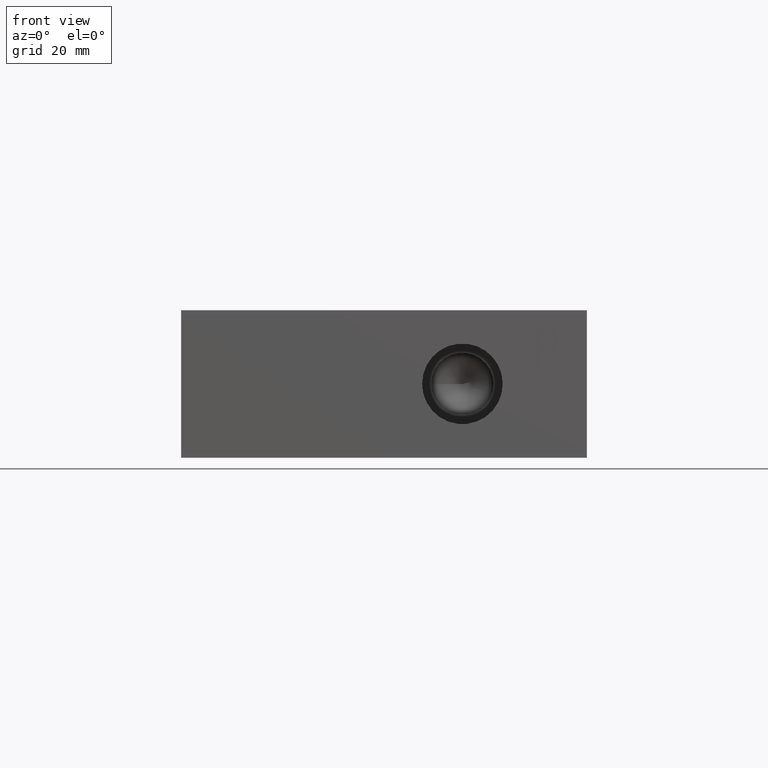
[diagram: clean part render]
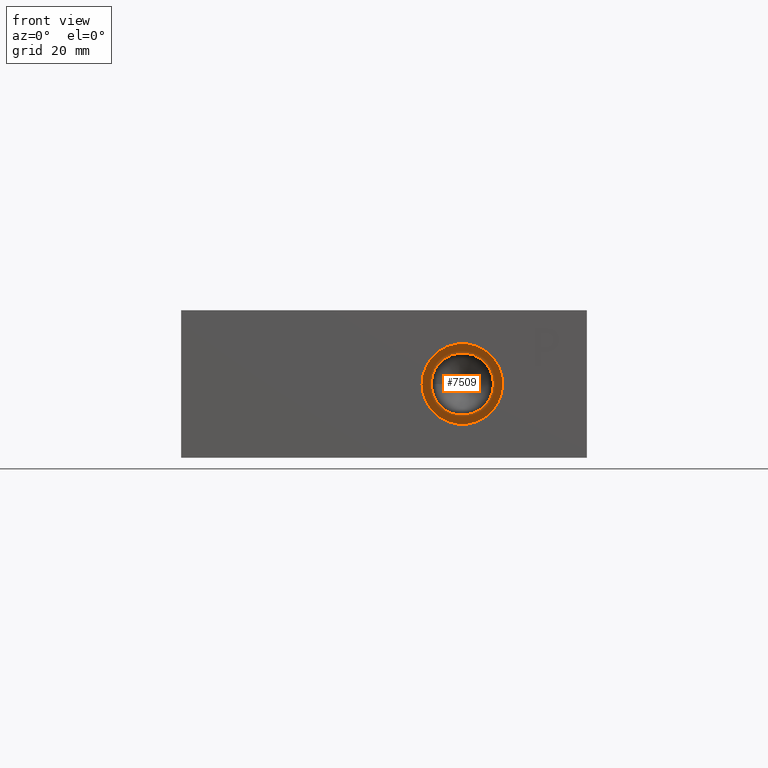
[diagram: same view with one face highlighted and labeled with its STEP entity id]
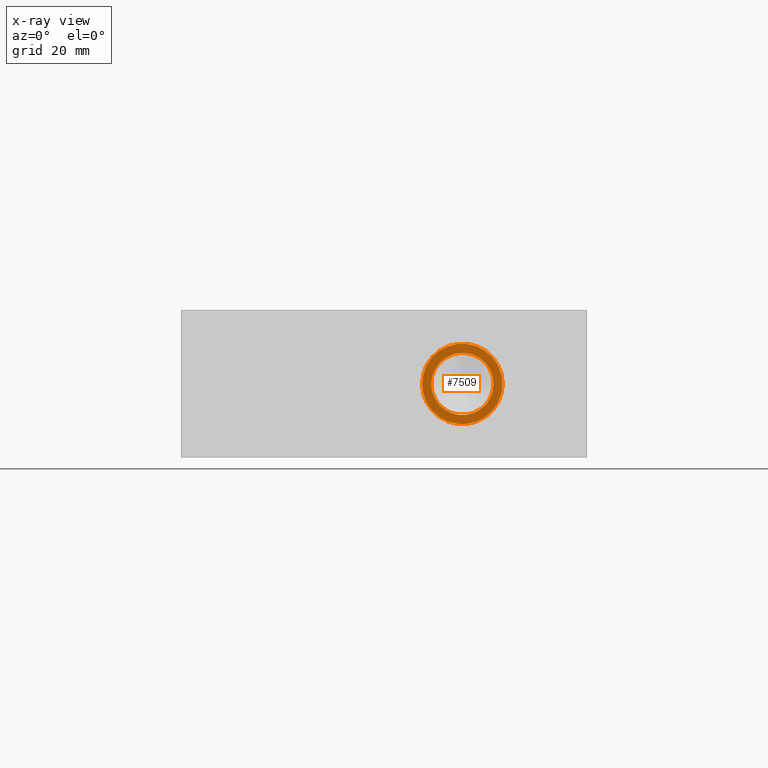
[diagram: x-ray of the same camera — body ghosted, the highlighted face saturated]
A machine part, front view. The second image highlights one B-rep face of the part: STEP entity #7509.
The next image is the same camera in x-ray: the body ghosted, the highlighted face saturated — about 0% of this face is hidden behind the body in this view.
In plain terms, the highlighted planar face has unit normal (0, -1, 0).
Its self-contained STEP definition (entity closure, byte-faithful):
#53=CIRCLE('',#7831,6.9342);
#54=CIRCLE('',#7832,6.9342);
#55=CIRCLE('',#7833,5.3594);
#156=FACE_BOUND('',#1188,.T.);
#438=PLANE('',#7830);
#780=FACE_OUTER_BOUND('',#1187,.T.);
#1187=EDGE_LOOP('',(#6508,#6509));
#1188=EDGE_LOOP('',(#6510));
#3611=VERTEX_POINT('',#12289);
#3612=VERTEX_POINT('',#12290);
#3613=VERTEX_POINT('',#12293);
#4604=EDGE_CURVE('',#3611,#3612,#53,.T.);
#4605=EDGE_CURVE('',#3612,#3611,#54,.T.);
#4606=EDGE_CURVE('',#3613,#3613,#55,.T.);
#6508=ORIENTED_EDGE('',*,*,#4604,.T.);
#6509=ORIENTED_EDGE('',*,*,#4605,.T.);
#6510=ORIENTED_EDGE('',*,*,#4606,.F.);
#7509=ADVANCED_FACE('',(#780,#156),#438,.T.);
#7830=AXIS2_PLACEMENT_3D('',#12288,#9224,#9225);
#7831=AXIS2_PLACEMENT_3D('',#12291,#9226,#9227);
#7832=AXIS2_PLACEMENT_3D('',#12292,#9228,#9229);
#7833=AXIS2_PLACEMENT_3D('',#12294,#9230,#9231);
#9224=DIRECTION('center_axis',(0.,-1.,0.));
#9225=DIRECTION('ref_axis',(1.,0.,0.));
#9226=DIRECTION('center_axis',(0.,-1.,0.));
#9227=DIRECTION('ref_axis',(1.,0.,0.));
#9228=DIRECTION('center_axis',(0.,-1.,0.));
#9229=DIRECTION('ref_axis',(1.,0.,0.));
#9230=DIRECTION('center_axis',(0.,-1.,0.));
#9231=DIRECTION('ref_axis',(1.,0.,0.));
#12288=CARTESIAN_POINT('Origin',(48.4124,11.4046,12.7));
#12289=CARTESIAN_POINT('',(55.3466,11.4046,12.7));
#12290=CARTESIAN_POINT('',(41.4782,11.4046,12.7));
#12291=CARTESIAN_POINT('Origin',(48.4124,11.4046,12.7));
#12292=CARTESIAN_POINT('Origin',(48.4124,11.4046,12.7));
#12293=CARTESIAN_POINT('',(43.053,11.4046,12.7));
#12294=CARTESIAN_POINT('Origin',(48.4124,11.4046,12.7));